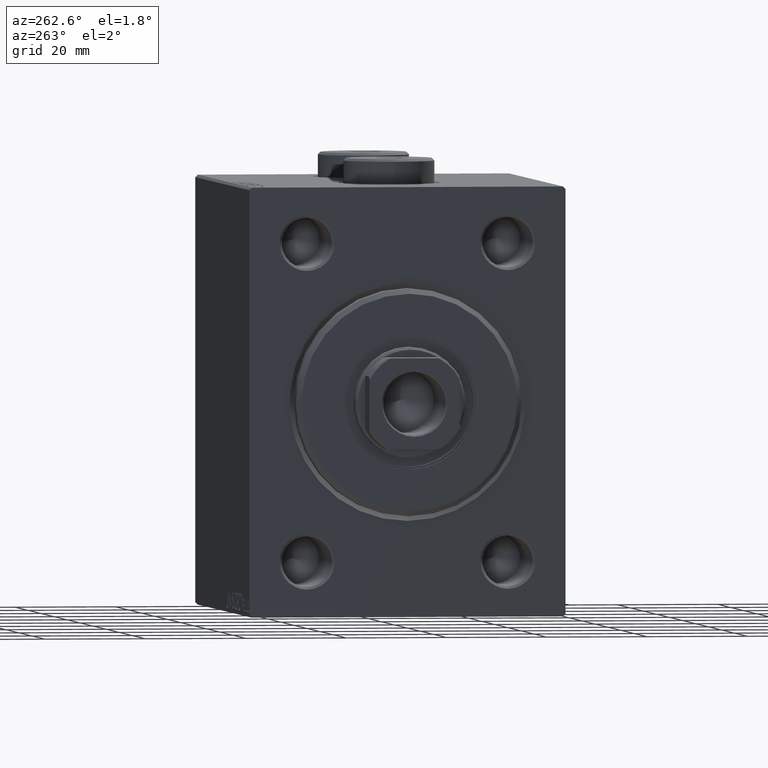
[diagram: clean part render]
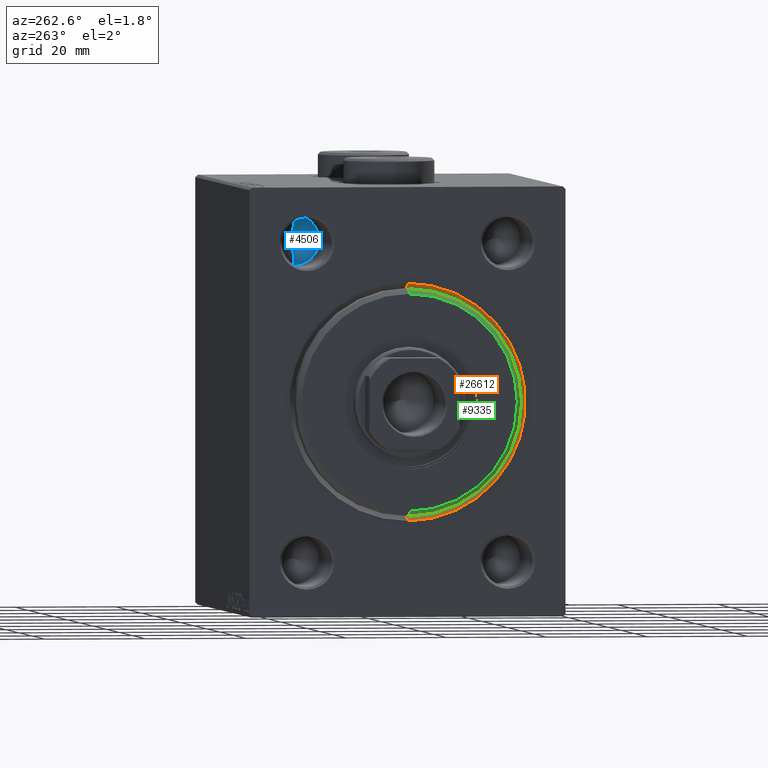
[diagram: same view with three faces highlighted in distinct colors, each labeled with its STEP entity id]
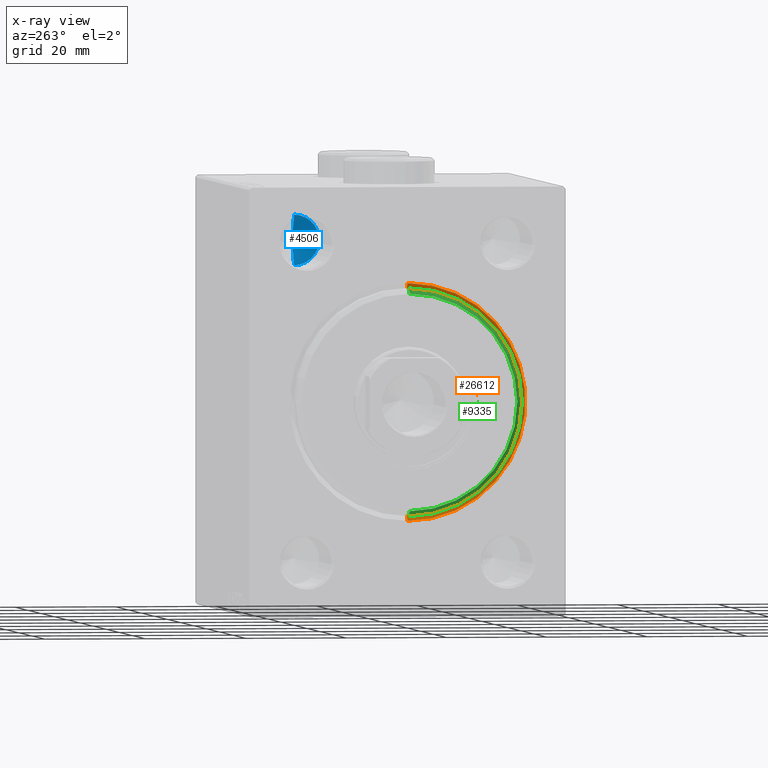
[diagram: x-ray of the same camera — body ghosted, the three highlighted faces saturated]
A machine part, auxiliary view with three faces highlighted in distinct colors.
The next image is the same camera in x-ray (body ghosted, the three faces saturated) — at least one of them is partly hidden behind the body in this view.
Their STEP definitions:

[orange] entity #26612 — the highlighted conical surface has half-angle 45 deg.
#236 = VECTOR ( 'NONE', #5434, 1000.000000000000000 ) ;
#385 = VERTEX_POINT ( 'NONE', #1356 ) ;
#1356 = CARTESIAN_POINT ( 'NONE',  ( 0.000000000000000000, 2.877919977996280715E-15, -23.50000000000000355 ) ) ;
#2616 = DIRECTION ( 'NONE',  ( 0.000000000000000000, 0.000000000000000000, -1.000000000000000000 ) ) ;
#2847 = CARTESIAN_POINT ( 'NONE',  ( 0.000000000000000000, 0.000000000000000000, 23.50000000000000355 ) ) ;
#5434 = DIRECTION ( 'NONE',  ( -0.7071067811865524577, 0.000000000000000000, 0.7071067811865426878 ) ) ;
#5554 = FACE_OUTER_BOUND ( 'NONE', #25044, .T. ) ;
#7065 = EDGE_CURVE ( 'NONE', #8774, #385, #27759, .T. ) ;
#8101 = DIRECTION ( 'NONE',  ( 0.000000000000000000, 0.000000000000000000, 1.000000000000000000 ) ) ;
#8774 = VERTEX_POINT ( 'NONE', #2847 ) ;
#9755 = AXIS2_PLACEMENT_3D ( 'NONE', #36120, #39557, #8101 ) ;
#10133 = ORIENTED_EDGE ( 'NONE', *, *, #43201, .T. ) ;
#17064 = DIRECTION ( 'NONE',  ( -1.000000000000000000, 0.000000000000000000, 0.000000000000000000 ) ) ;
#17705 = VERTEX_POINT ( 'NONE', #45158 ) ;
#17948 = CARTESIAN_POINT ( 'NONE',  ( 0.000000000000000000, 0.000000000000000000, 0.000000000000000000 ) ) ;
#19415 = ORIENTED_EDGE ( 'NONE', *, *, #25307, .F. ) ;
#21488 = VECTOR ( 'NONE', #26537, 1000.000000000000000 ) ;
#21900 = AXIS2_PLACEMENT_3D ( 'NONE', #17948, #32658, #25524 ) ;
#23435 = AXIS2_PLACEMENT_3D ( 'NONE', #33846, #17064, #2616 ) ;
#25044 = EDGE_LOOP ( 'NONE', ( #30589, #10133, #44010, #19415 ) ) ;
#25307 = EDGE_CURVE ( 'NONE', #17705, #8774, #43533, .T. ) ;
#25524 = DIRECTION ( 'NONE',  ( 0.000000000000000000, 0.000000000000000000, -1.000000000000000000 ) ) ;
#26537 = DIRECTION ( 'NONE',  ( -0.7071067811865524577, 8.659560562354874926E-17, -0.7071067811865426878 ) ) ;
#26612 = ADVANCED_FACE ( 'NONE', ( #5554 ), #43484, .F. ) ;
#27759 = CIRCLE ( 'NONE', #21900, 23.50000000000000355 ) ;
#30589 = ORIENTED_EDGE ( 'NONE', *, *, #35415, .F. ) ;
#31331 = CARTESIAN_POINT ( 'NONE',  ( 1.000000000000014655, 2.755455298081545172E-15, -22.50000000000000355 ) ) ;
#32473 = VERTEX_POINT ( 'NONE', #31331 ) ;
#32658 = DIRECTION ( 'NONE',  ( 1.000000000000000000, 0.000000000000000000, 0.000000000000000000 ) ) ;
#32988 = CARTESIAN_POINT ( 'NONE',  ( 1.000000000000014655, 2.755455298081545172E-15, -22.50000000000000355 ) ) ;
#33846 = CARTESIAN_POINT ( 'NONE',  ( 1.000000000000014655, 0.000000000000000000, 0.000000000000000000 ) ) ;
#35415 = EDGE_CURVE ( 'NONE', #32473, #17705, #43251, .T. ) ;
#36120 = CARTESIAN_POINT ( 'NONE',  ( 1.000000000000014655, 0.000000000000000000, 0.000000000000000000 ) ) ;
#39557 = DIRECTION ( 'NONE',  ( -1.000000000000000000, 0.000000000000000000, 0.000000000000000000 ) ) ;
#40076 = LINE ( 'NONE', #32988, #21488 ) ;
#40311 = CARTESIAN_POINT ( 'NONE',  ( 1.000000000000014655, 0.000000000000000000, 22.50000000000000355 ) ) ;
#43201 = EDGE_CURVE ( 'NONE', #32473, #385, #40076, .T. ) ;
#43251 = CIRCLE ( 'NONE', #23435, 22.50000000000000355 ) ;
#43484 = CONICAL_SURFACE ( 'NONE', #9755, 22.50000000000000355, 0.7853981633974415066 ) ;
#43533 = LINE ( 'NONE', #40311, #236 ) ;
#44010 = ORIENTED_EDGE ( 'NONE', *, *, #7065, .F. ) ;
#45158 = CARTESIAN_POINT ( 'NONE',  ( 1.000000000000014655, 0.000000000000000000, 22.50000000000000355 ) ) ;

[blue] entity #4506 — the highlighted conical surface has half-angle 59 deg.
#967 = VECTOR ( 'NONE', #18356, 1000.000000000000000 ) ;
#980 = CIRCLE ( 'NONE', #6824, 4.999999999999997335 ) ;
#1273 = LINE ( 'NONE', #35936, #36081 ) ;
#3483 = VERTEX_POINT ( 'NONE', #34441 ) ;
#3571 = CARTESIAN_POINT ( 'NONE',  ( 20.00000000000000000, 19.99999999999999645, 31.50000000000000000 ) ) ;
#4506 = ADVANCED_FACE ( 'NONE', ( #11306 ), #29173, .F. ) ;
#4781 = ORIENTED_EDGE ( 'NONE', *, *, #21410, .T. ) ;
#6824 = AXIS2_PLACEMENT_3D ( 'NONE', #3571, #14351, #35485 ) ;
#8499 = ORIENTED_EDGE ( 'NONE', *, *, #39962, .T. ) ;
#8673 = CARTESIAN_POINT ( 'NONE',  ( 20.00000000000000000, 19.99999999999999645, 26.50000000000000355 ) ) ;
#11306 = FACE_OUTER_BOUND ( 'NONE', #22430, .T. ) ;
#13992 = VERTEX_POINT ( 'NONE', #22884 ) ;
#14351 = DIRECTION ( 'NONE',  ( -1.000000000000000000, -0.000000000000000000, -0.000000000000000000 ) ) ;
#15252 = DIRECTION ( 'NONE',  ( -0.5150380749100550437, 1.049727191138617956E-16, -0.8571673007021117785 ) ) ;
#17958 = CARTESIAN_POINT ( 'NONE',  ( 20.00000000000000000, 19.99999999999999645, 31.50000000000000000 ) ) ;
#18356 = DIRECTION ( 'NONE',  ( -0.5150380749100550437, 0.000000000000000000, 0.8571673007021117785 ) ) ;
#21180 = DIRECTION ( 'NONE',  ( -1.000000000000000000, -0.000000000000000000, -0.000000000000000000 ) ) ;
#21410 = EDGE_CURVE ( 'NONE', #38326, #3483, #980, .T. ) ;
#22033 = LINE ( 'NONE', #39258, #967 ) ;
#22430 = EDGE_LOOP ( 'NONE', ( #33488, #8499, #4781 ) ) ;
#22884 = CARTESIAN_POINT ( 'NONE',  ( 23.00430309513780358, 19.99999999999998934, 31.50000000000000000 ) ) ;
#27699 = AXIS2_PLACEMENT_3D ( 'NONE', #17958, #21180, #35873 ) ;
#29173 = CONICAL_SURFACE ( 'NONE', #27699, 4.999999999999997335, 1.029744258676653423 ) ;
#33488 = ORIENTED_EDGE ( 'NONE', *, *, #42907, .F. ) ;
#34441 = CARTESIAN_POINT ( 'NONE',  ( 20.00000000000000000, 19.99999999999999645, 36.50000000000000000 ) ) ;
#35485 = DIRECTION ( 'NONE',  ( 0.000000000000000000, 0.000000000000000000, 1.000000000000000000 ) ) ;
#35873 = DIRECTION ( 'NONE',  ( 0.000000000000000000, 0.000000000000000000, 1.000000000000000000 ) ) ;
#35936 = CARTESIAN_POINT ( 'NONE',  ( 20.00000000000000000, 19.99999999999999645, 26.50000000000000355 ) ) ;
#36081 = VECTOR ( 'NONE', #15252, 1000.000000000000000 ) ;
#38326 = VERTEX_POINT ( 'NONE', #8673 ) ;
#39258 = CARTESIAN_POINT ( 'NONE',  ( 20.00000000000000000, 19.99999999999999645, 36.50000000000000000 ) ) ;
#39962 = EDGE_CURVE ( 'NONE', #13992, #38326, #1273, .T. ) ;
#42907 = EDGE_CURVE ( 'NONE', #13992, #3483, #22033, .T. ) ;

[green] entity #9335 — the highlighted conical surface has half-angle 45 deg.
#2178 = CARTESIAN_POINT ( 'NONE',  ( 1.999999999999992228, 2.755455298081545172E-15, -22.50000000000000355 ) ) ;
#2293 = ORIENTED_EDGE ( 'NONE', *, *, #35877, .F. ) ;
#2534 = DIRECTION ( 'NONE',  ( -1.000000000000000000, 0.000000000000000000, 0.000000000000000000 ) ) ;
#6583 = CARTESIAN_POINT ( 'NONE',  ( 3.000000000000000000, 0.000000000000000000, 0.000000000000000000 ) ) ;
#6755 = CIRCLE ( 'NONE', #28755, 21.50000000000000355 ) ;
#7232 = EDGE_CURVE ( 'NONE', #38273, #36900, #14585, .T. ) ;
#8090 = VECTOR ( 'NONE', #36903, 1000.000000000000000 ) ;
#8906 = CARTESIAN_POINT ( 'NONE',  ( 1.999999999999992228, 0.000000000000000000, 22.50000000000000355 ) ) ;
#9335 = ADVANCED_FACE ( 'NONE', ( #10010 ), #22566, .T. ) ;
#9477 = ORIENTED_EDGE ( 'NONE', *, *, #22534, .F. ) ;
#10010 = FACE_OUTER_BOUND ( 'NONE', #39440, .T. ) ;
#10639 = VERTEX_POINT ( 'NONE', #34204 ) ;
#13209 = CARTESIAN_POINT ( 'NONE',  ( 3.000000000000000000, 0.000000000000000000, 21.50000000000000355 ) ) ;
#13312 = CARTESIAN_POINT ( 'NONE',  ( 1.999999999999992228, 0.000000000000000000, 0.000000000000000000 ) ) ;
#14585 = CIRCLE ( 'NONE', #31482, 22.50000000000000355 ) ;
#15246 = CARTESIAN_POINT ( 'NONE',  ( 3.000000000000000000, 0.000000000000000000, 0.000000000000000000 ) ) ;
#19890 = LINE ( 'NONE', #23792, #22556 ) ;
#21094 = AXIS2_PLACEMENT_3D ( 'NONE', #6583, #38493, #30688 ) ;
#22534 = EDGE_CURVE ( 'NONE', #10639, #39730, #6755, .T. ) ;
#22556 = VECTOR ( 'NONE', #26805, 1000.000000000000000 ) ;
#22566 = CONICAL_SURFACE ( 'NONE', #21094, 21.50000000000000355, 0.7853981633974431720 ) ;
#23792 = CARTESIAN_POINT ( 'NONE',  ( 3.000000000000000000, 2.632990618166810024E-15, -21.50000000000000355 ) ) ;
#25592 = DIRECTION ( 'NONE',  ( 1.000000000000000000, -0.000000000000000000, 0.000000000000000000 ) ) ;
#26805 = DIRECTION ( 'NONE',  ( -0.7071067811865512365, 8.659560562354888485E-17, -0.7071067811865439090 ) ) ;
#28755 = AXIS2_PLACEMENT_3D ( 'NONE', #15246, #25592, #32717 ) ;
#28935 = EDGE_CURVE ( 'NONE', #10639, #36900, #19890, .T. ) ;
#30008 = LINE ( 'NONE', #44230, #8090 ) ;
#30688 = DIRECTION ( 'NONE',  ( 0.000000000000000000, 0.000000000000000000, 1.000000000000000000 ) ) ;
#31482 = AXIS2_PLACEMENT_3D ( 'NONE', #13312, #2534, #41332 ) ;
#32717 = DIRECTION ( 'NONE',  ( 0.000000000000000000, 0.000000000000000000, -1.000000000000000000 ) ) ;
#34204 = CARTESIAN_POINT ( 'NONE',  ( 3.000000000000000000, 2.694222958124177598E-15, -21.50000000000000355 ) ) ;
#35877 = EDGE_CURVE ( 'NONE', #39730, #38273, #30008, .T. ) ;
#36900 = VERTEX_POINT ( 'NONE', #2178 ) ;
#36903 = DIRECTION ( 'NONE',  ( -0.7071067811865512365, 0.000000000000000000, 0.7071067811865439090 ) ) ;
#38273 = VERTEX_POINT ( 'NONE', #8906 ) ;
#38493 = DIRECTION ( 'NONE',  ( -1.000000000000000000, 0.000000000000000000, 0.000000000000000000 ) ) ;
#39440 = EDGE_LOOP ( 'NONE', ( #9477, #44065, #45342, #2293 ) ) ;
#39730 = VERTEX_POINT ( 'NONE', #13209 ) ;
#41332 = DIRECTION ( 'NONE',  ( 0.000000000000000000, 0.000000000000000000, -1.000000000000000000 ) ) ;
#44065 = ORIENTED_EDGE ( 'NONE', *, *, #28935, .T. ) ;
#44230 = CARTESIAN_POINT ( 'NONE',  ( 3.000000000000000000, 0.000000000000000000, 21.50000000000000355 ) ) ;
#45342 = ORIENTED_EDGE ( 'NONE', *, *, #7232, .F. ) ;